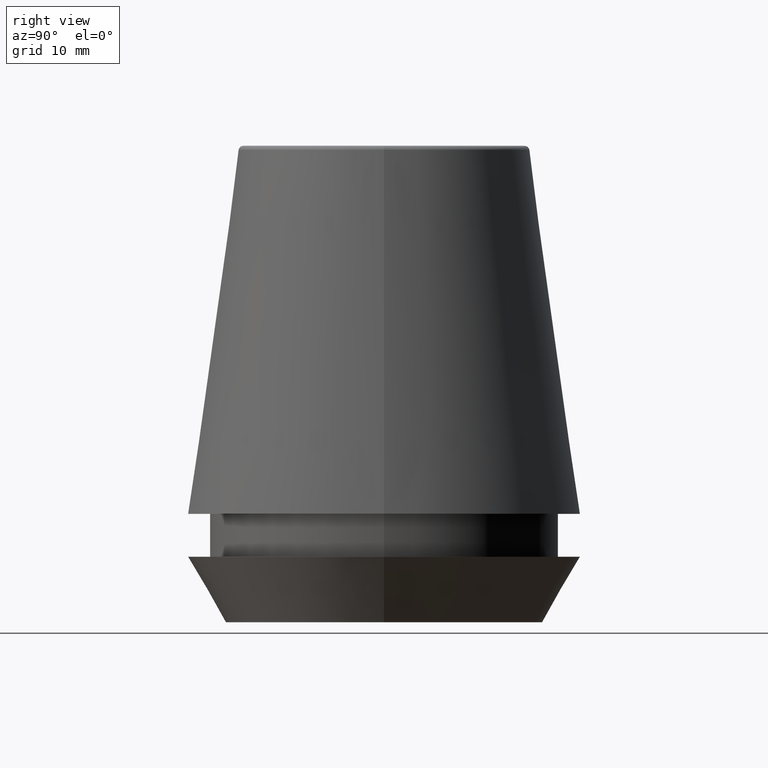
[diagram: clean part render]
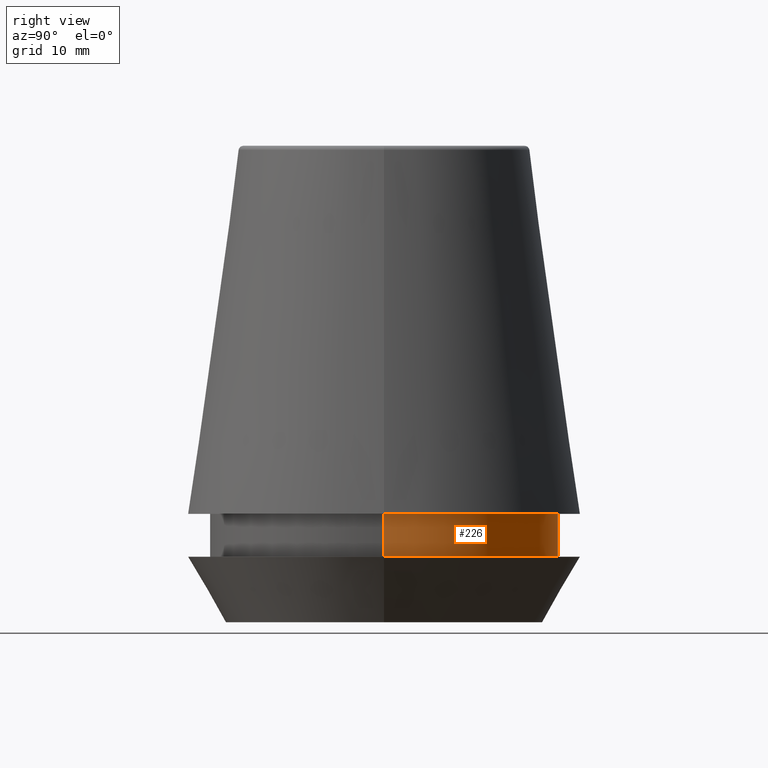
[diagram: same view with one face highlighted and labeled with its STEP entity id]
A machine part, right view. The second image highlights one B-rep face of the part: STEP entity #226.
In plain terms, the highlighted cylindrical surface (partial cylindrical patch) has radius 14.6 mm, axis along (-0, -0, 1).
Its self-contained STEP definition (entity closure, byte-faithful):
#9 = CARTESIAN_POINT ( 'NONE',  ( -14.60000000000000000, 1.787984326755135800E-015, 101.8074564848000400 ) ) ;
#22 = CARTESIAN_POINT ( 'NONE',  ( 0.0000000000000000000, 0.0000000000000000000, 101.8074564848000400 ) ) ;
#23 = CIRCLE ( 'NONE', #176, 14.60000000000000000 ) ;
#28 = VERTEX_POINT ( 'NONE', #361 ) ;
#29 = DIRECTION ( 'NONE',  ( 1.000000000000000000, 0.0000000000000000000, 0.0000000000000000000 ) ) ;
#30 = CARTESIAN_POINT ( 'NONE',  ( 14.60000000000000000, 0.0000000000000000000, 101.8074564848000400 ) ) ;
#34 = EDGE_LOOP ( 'NONE', ( #345, #123, #107, #100 ) ) ;
#60 = VERTEX_POINT ( 'NONE', #83 ) ;
#67 = VECTOR ( 'NONE', #381, 1000.000000000000000 ) ;
#75 = EDGE_CURVE ( 'NONE', #247, #60, #217, .T. ) ;
#78 = EDGE_CURVE ( 'NONE', #247, #28, #149, .T. ) ;
#83 = CARTESIAN_POINT ( 'NONE',  ( 14.60000000000000000, 0.0000000000000000000, 9.099999999999997900 ) ) ;
#100 = ORIENTED_EDGE ( 'NONE', *, *, #75, .F. ) ;
#107 = ORIENTED_EDGE ( 'NONE', *, *, #213, .F. ) ;
#116 = VECTOR ( 'NONE', #265, 1000.000000000000000 ) ;
#123 = ORIENTED_EDGE ( 'NONE', *, *, #221, .T. ) ;
#138 = DIRECTION ( 'NONE',  ( -0.0000000000000000000, -0.0000000000000000000, 1.000000000000000000 ) ) ;
#149 = CIRCLE ( 'NONE', #183, 14.60000000000000000 ) ;
#176 = AXIS2_PLACEMENT_3D ( 'NONE', #244, #344, #29 ) ;
#183 = AXIS2_PLACEMENT_3D ( 'NONE', #202, #138, #347 ) ;
#185 = CARTESIAN_POINT ( 'NONE',  ( -14.60000000000000000, 1.787984326755135800E-015, 9.099999999999997900 ) ) ;
#202 = CARTESIAN_POINT ( 'NONE',  ( 0.0000000000000000000, 0.0000000000000000000, 5.500000000000005300 ) ) ;
#204 = CARTESIAN_POINT ( 'NONE',  ( 14.60000000000000000, 0.0000000000000000000, 5.500000000000005300 ) ) ;
#213 = EDGE_CURVE ( 'NONE', #60, #272, #23, .T. ) ;
#217 = LINE ( 'NONE', #30, #67 ) ;
#221 = EDGE_CURVE ( 'NONE', #28, #272, #269, .T. ) ;
#226 = ADVANCED_FACE ( 'NONE', ( #290 ), #385, .T. ) ;
#244 = CARTESIAN_POINT ( 'NONE',  ( 0.0000000000000000000, 0.0000000000000000000, 9.099999999999997900 ) ) ;
#247 = VERTEX_POINT ( 'NONE', #204 ) ;
#262 = DIRECTION ( 'NONE',  ( 1.000000000000000000, 0.0000000000000000000, 0.0000000000000000000 ) ) ;
#265 = DIRECTION ( 'NONE',  ( -0.0000000000000000000, -0.0000000000000000000, 1.000000000000000000 ) ) ;
#269 = LINE ( 'NONE', #9, #116 ) ;
#272 = VERTEX_POINT ( 'NONE', #185 ) ;
#290 = FACE_OUTER_BOUND ( 'NONE', #34, .T. ) ;
#342 = DIRECTION ( 'NONE',  ( -0.0000000000000000000, -0.0000000000000000000, 1.000000000000000000 ) ) ;
#344 = DIRECTION ( 'NONE',  ( -0.0000000000000000000, -0.0000000000000000000, 1.000000000000000000 ) ) ;
#345 = ORIENTED_EDGE ( 'NONE', *, *, #78, .T. ) ;
#347 = DIRECTION ( 'NONE',  ( 1.000000000000000000, 0.0000000000000000000, 0.0000000000000000000 ) ) ;
#361 = CARTESIAN_POINT ( 'NONE',  ( -14.60000000000000000, 1.787984326755135800E-015, 5.500000000000005300 ) ) ;
#379 = AXIS2_PLACEMENT_3D ( 'NONE', #22, #342, #262 ) ;
#381 = DIRECTION ( 'NONE',  ( -0.0000000000000000000, -0.0000000000000000000, 1.000000000000000000 ) ) ;
#385 = CYLINDRICAL_SURFACE ( 'NONE', #379, 14.60000000000000000 ) ;